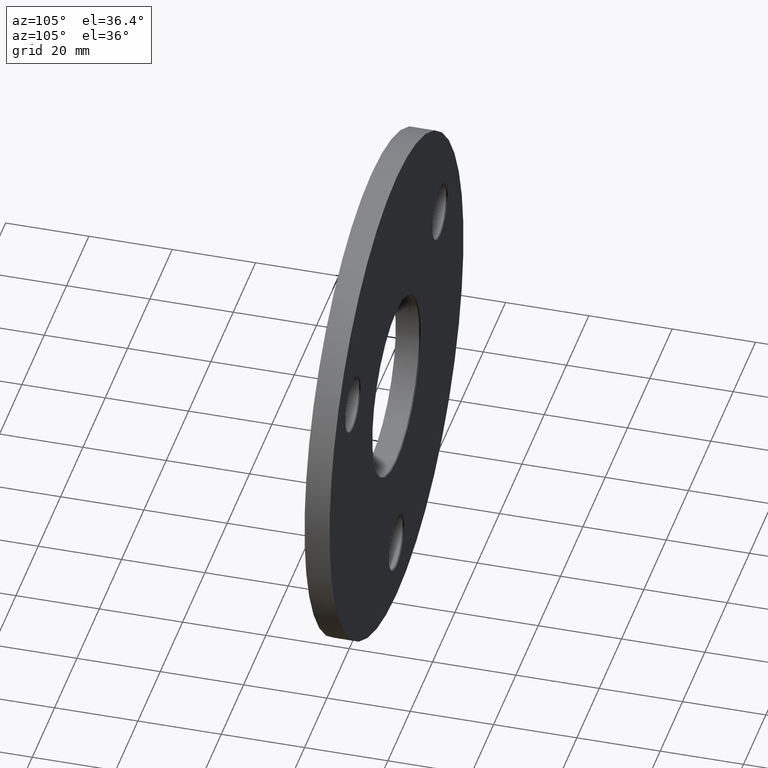
[diagram: clean part render]
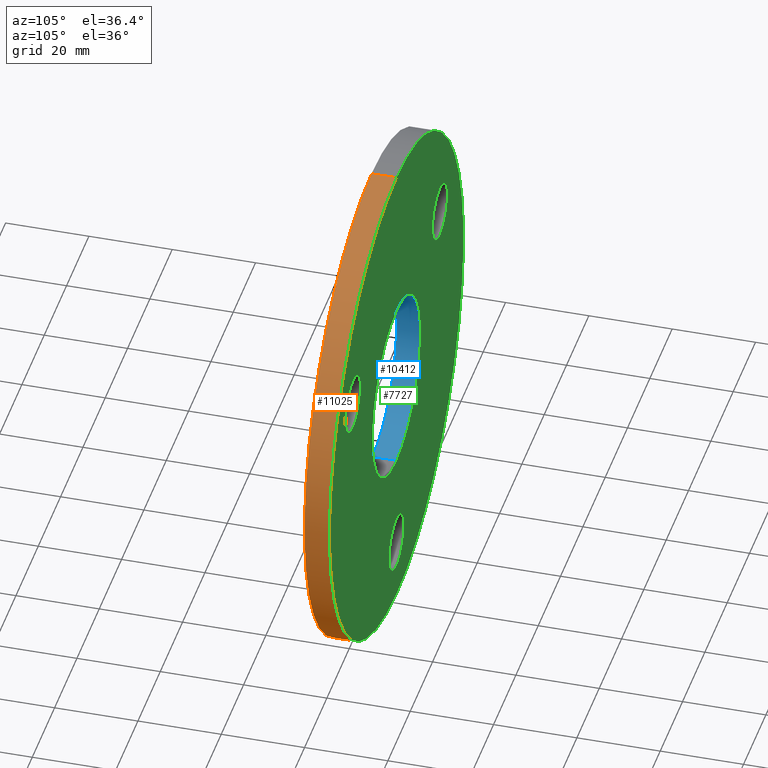
[diagram: same view with three faces highlighted in distinct colors, each labeled with its STEP entity id]
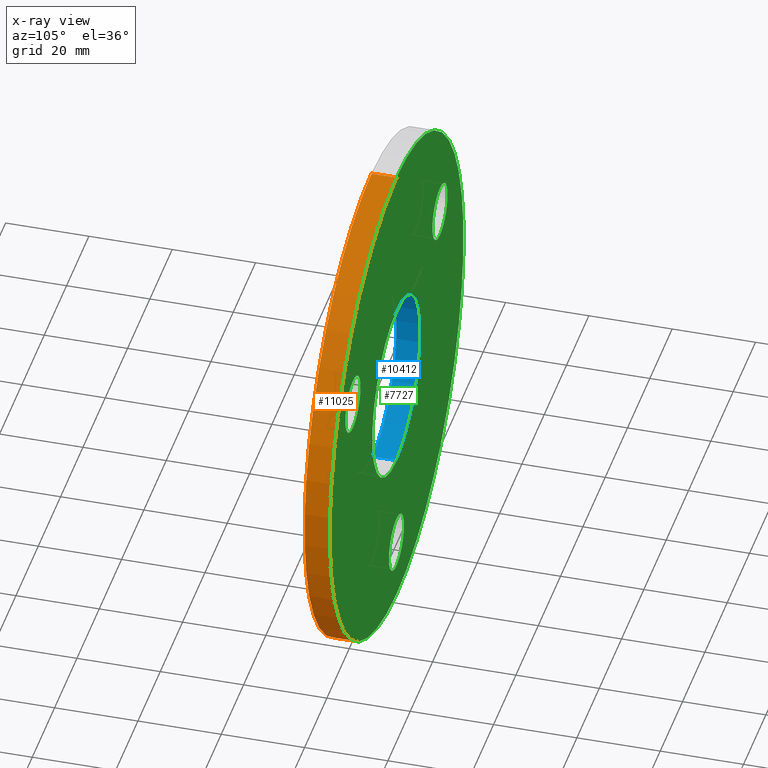
[diagram: x-ray of the same camera — body ghosted, the three highlighted faces saturated]
A machine part, auxiliary view with three faces highlighted in distinct colors.
The next image is the same camera in x-ray (body ghosted, the three faces saturated) — at least one of them is partly hidden behind the body in this view.
Their STEP definitions:

[orange] entity #11025 — the highlighted cylindrical surface (partial cylindrical patch) has radius 60 mm, axis along (-0, -1, -0).
#642 = EDGE_LOOP ( 'NONE', ( #5827, #2357, #12150, #735 ) ) ;
#735 = ORIENTED_EDGE ( 'NONE', *, *, #5566, .F. ) ;
#754 = VERTEX_POINT ( 'NONE', #4072 ) ;
#956 = DIRECTION ( 'NONE',  ( -0.000000000000000000, -1.000000000000000000, -0.000000000000000000 ) ) ;
#1080 = VECTOR ( 'NONE', #10108, 1000.000000000000000 ) ;
#2357 = ORIENTED_EDGE ( 'NONE', *, *, #11324, .T. ) ;
#2361 = LINE ( 'NONE', #12011, #1080 ) ;
#2918 = CARTESIAN_POINT ( 'NONE',  ( 7.347880794884118356E-15, 6.000000000000000000, 60.00000000000000000 ) ) ;
#2967 = EDGE_CURVE ( 'NONE', #8193, #754, #6331, .T. ) ;
#3118 = AXIS2_PLACEMENT_3D ( 'NONE', #8596, #8512, #4784 ) ;
#3627 = DIRECTION ( 'NONE',  ( 0.000000000000000000, 0.000000000000000000, 1.000000000000000000 ) ) ;
#3648 = CARTESIAN_POINT ( 'NONE',  ( 0.000000000000000000, 6.000000000000000000, -60.00000000000000000 ) ) ;
#3822 = CARTESIAN_POINT ( 'NONE',  ( 7.347880794884118356E-15, 0.000000000000000000, 60.00000000000000000 ) ) ;
#4072 = CARTESIAN_POINT ( 'NONE',  ( 0.000000000000000000, 0.000000000000000000, -60.00000000000000000 ) ) ;
#4772 = AXIS2_PLACEMENT_3D ( 'NONE', #10327, #6591, #3627 ) ;
#4784 = DIRECTION ( 'NONE',  ( 0.000000000000000000, 0.000000000000000000, 1.000000000000000000 ) ) ;
#5245 = VECTOR ( 'NONE', #12069, 1000.000000000000000 ) ;
#5322 = FACE_OUTER_BOUND ( 'NONE', #642, .T. ) ;
#5566 = EDGE_CURVE ( 'NONE', #11062, #754, #10972, .T. ) ;
#5827 = ORIENTED_EDGE ( 'NONE', *, *, #6070, .F. ) ;
#6070 = EDGE_CURVE ( 'NONE', #11412, #11062, #8465, .T. ) ;
#6331 = CIRCLE ( 'NONE', #4772, 60.00000000000000000 ) ;
#6591 = DIRECTION ( 'NONE',  ( 0.000000000000000000, 1.000000000000000000, 0.000000000000000000 ) ) ;
#6786 = CYLINDRICAL_SURFACE ( 'NONE', #10463, 60.00000000000000000 ) ;
#8193 = VERTEX_POINT ( 'NONE', #3822 ) ;
#8234 = CARTESIAN_POINT ( 'NONE',  ( 0.000000000000000000, 6.000000000000000000, -60.00000000000000000 ) ) ;
#8465 = CIRCLE ( 'NONE', #3118, 60.00000000000000000 ) ;
#8512 = DIRECTION ( 'NONE',  ( 0.000000000000000000, 1.000000000000000000, 0.000000000000000000 ) ) ;
#8596 = CARTESIAN_POINT ( 'NONE',  ( 0.000000000000000000, 6.000000000000000000, 0.000000000000000000 ) ) ;
#9245 = CARTESIAN_POINT ( 'NONE',  ( 0.000000000000000000, 6.000000000000000000, 0.000000000000000000 ) ) ;
#10108 = DIRECTION ( 'NONE',  ( -0.000000000000000000, -1.000000000000000000, -0.000000000000000000 ) ) ;
#10327 = CARTESIAN_POINT ( 'NONE',  ( 0.000000000000000000, 0.000000000000000000, 0.000000000000000000 ) ) ;
#10463 = AXIS2_PLACEMENT_3D ( 'NONE', #9245, #956, #11217 ) ;
#10972 = LINE ( 'NONE', #8234, #5245 ) ;
#11025 = ADVANCED_FACE ( 'NONE', ( #5322 ), #6786, .T. ) ;
#11062 = VERTEX_POINT ( 'NONE', #3648 ) ;
#11217 = DIRECTION ( 'NONE',  ( 0.000000000000000000, 0.000000000000000000, -1.000000000000000000 ) ) ;
#11324 = EDGE_CURVE ( 'NONE', #11412, #8193, #2361, .T. ) ;
#11412 = VERTEX_POINT ( 'NONE', #2918 ) ;
#12011 = CARTESIAN_POINT ( 'NONE',  ( 7.347880794884118356E-15, 6.000000000000000000, 60.00000000000000000 ) ) ;
#12069 = DIRECTION ( 'NONE',  ( -0.000000000000000000, -1.000000000000000000, -0.000000000000000000 ) ) ;
#12150 = ORIENTED_EDGE ( 'NONE', *, *, #2967, .T. ) ;

[blue] entity #10412 — the highlighted cylindrical surface (partial cylindrical patch) has radius 21.4 mm, axis along (-0, 1, -0).
#73 = DIRECTION ( 'NONE',  ( -0.000000000000000000, 1.000000000000000000, -0.000000000000000000 ) ) ;
#204 = CYLINDRICAL_SURFACE ( 'NONE', #5026, 21.39999999999999858 ) ;
#526 = CIRCLE ( 'NONE', #1806, 21.39999999999999858 ) ;
#779 = ORIENTED_EDGE ( 'NONE', *, *, #9033, .T. ) ;
#1806 = AXIS2_PLACEMENT_3D ( 'NONE', #10200, #5518, #8274 ) ;
#2708 = EDGE_CURVE ( 'NONE', #2955, #10328, #6779, .T. ) ;
#2949 = VERTEX_POINT ( 'NONE', #7550 ) ;
#2955 = VERTEX_POINT ( 'NONE', #4664 ) ;
#2959 = CARTESIAN_POINT ( 'NONE',  ( 0.000000000000000000, 0.000000000000000000, 0.000000000000000000 ) ) ;
#3197 = CARTESIAN_POINT ( 'NONE',  ( 2.620744150175335878E-15, 5.750000000000007105, -21.39999999999999858 ) ) ;
#4125 = FACE_OUTER_BOUND ( 'NONE', #10057, .T. ) ;
#4290 = CIRCLE ( 'NONE', #9906, 21.39999999999999858 ) ;
#4664 = CARTESIAN_POINT ( 'NONE',  ( 0.000000000000000000, 0.2499999999999932832, 21.39999999999999858 ) ) ;
#4692 = DIRECTION ( 'NONE',  ( -0.000000000000000000, 1.000000000000000000, -0.000000000000000000 ) ) ;
#5026 = AXIS2_PLACEMENT_3D ( 'NONE', #2959, #4692, #10473 ) ;
#5189 = DIRECTION ( 'NONE',  ( -0.000000000000000000, -1.000000000000000000, -0.000000000000000000 ) ) ;
#5518 = DIRECTION ( 'NONE',  ( 0.000000000000000000, 1.000000000000000000, 0.000000000000000000 ) ) ;
#5747 = ORIENTED_EDGE ( 'NONE', *, *, #9482, .T. ) ;
#6779 = LINE ( 'NONE', #8551, #8391 ) ;
#7469 = ORIENTED_EDGE ( 'NONE', *, *, #8127, .T. ) ;
#7550 = CARTESIAN_POINT ( 'NONE',  ( 2.620744150175335878E-15, 0.2499999999999932832, -21.39999999999999858 ) ) ;
#8127 = EDGE_CURVE ( 'NONE', #8341, #10328, #526, .T. ) ;
#8274 = DIRECTION ( 'NONE',  ( 0.000000000000000000, 0.000000000000000000, 1.000000000000000000 ) ) ;
#8341 = VERTEX_POINT ( 'NONE', #3197 ) ;
#8391 = VECTOR ( 'NONE', #73, 1000.000000000000000 ) ;
#8551 = CARTESIAN_POINT ( 'NONE',  ( 0.000000000000000000, 0.000000000000000000, 21.39999999999999858 ) ) ;
#8811 = CARTESIAN_POINT ( 'NONE',  ( 2.620744150175335878E-15, 0.000000000000000000, -21.39999999999999858 ) ) ;
#9033 = EDGE_CURVE ( 'NONE', #2949, #8341, #11526, .T. ) ;
#9370 = CARTESIAN_POINT ( 'NONE',  ( 0.000000000000000000, 5.750000000000007105, 21.39999999999999858 ) ) ;
#9482 = EDGE_CURVE ( 'NONE', #2955, #2949, #4290, .T. ) ;
#9603 = ORIENTED_EDGE ( 'NONE', *, *, #2708, .F. ) ;
#9748 = DIRECTION ( 'NONE',  ( 0.000000000000000000, 0.000000000000000000, 1.000000000000000000 ) ) ;
#9761 = DIRECTION ( 'NONE',  ( -0.000000000000000000, 1.000000000000000000, -0.000000000000000000 ) ) ;
#9906 = AXIS2_PLACEMENT_3D ( 'NONE', #11691, #5189, #9748 ) ;
#10057 = EDGE_LOOP ( 'NONE', ( #5747, #779, #7469, #9603 ) ) ;
#10200 = CARTESIAN_POINT ( 'NONE',  ( 0.000000000000000000, 5.750000000000007105, 0.000000000000000000 ) ) ;
#10328 = VERTEX_POINT ( 'NONE', #9370 ) ;
#10412 = ADVANCED_FACE ( 'NONE', ( #4125 ), #204, .F. ) ;
#10473 = DIRECTION ( 'NONE',  ( 0.000000000000000000, 0.000000000000000000, 1.000000000000000000 ) ) ;
#10619 = VECTOR ( 'NONE', #9761, 1000.000000000000000 ) ;
#11526 = LINE ( 'NONE', #8811, #10619 ) ;
#11691 = CARTESIAN_POINT ( 'NONE',  ( 0.000000000000000000, 0.2499999999999932832, 0.000000000000000000 ) ) ;

[green] entity #7727 — the highlighted planar face has unit normal (0, 1, 0).
#193 = CARTESIAN_POINT ( 'NONE',  ( 0.000000000000000000, 6.000000000000000000, -38.25000000000000711 ) ) ;
#281 = VERTEX_POINT ( 'NONE', #9692 ) ;
#529 = AXIS2_PLACEMENT_3D ( 'NONE', #6562, #4804, #11378 ) ;
#603 = DIRECTION ( 'NONE',  ( -0.000000000000000000, -1.000000000000000000, -0.000000000000000000 ) ) ;
#607 = AXIS2_PLACEMENT_3D ( 'NONE', #1891, #2734, #6606 ) ;
#703 = EDGE_LOOP ( 'NONE', ( #3218, #1149 ) ) ;
#915 = ORIENTED_EDGE ( 'NONE', *, *, #5829, .T. ) ;
#982 = VERTEX_POINT ( 'NONE', #5848 ) ;
#1019 = CARTESIAN_POINT ( 'NONE',  ( 0.000000000000000000, 6.000000000000000000, 0.000000000000000000 ) ) ;
#1034 = EDGE_CURVE ( 'NONE', #11414, #10438, #11286, .T. ) ;
#1141 = DIRECTION ( 'NONE',  ( 0.000000000000000000, 0.000000000000000000, 1.000000000000000000 ) ) ;
#1149 = ORIENTED_EDGE ( 'NONE', *, *, #11958, .T. ) ;
#1205 = CIRCLE ( 'NONE', #5191, 6.750000000000033751 ) ;
#1362 = EDGE_CURVE ( 'NONE', #3867, #281, #2302, .T. ) ;
#1622 = AXIS2_PLACEMENT_3D ( 'NONE', #9383, #12070, #8434 ) ;
#1776 = EDGE_LOOP ( 'NONE', ( #6773, #915 ) ) ;
#1879 = EDGE_CURVE ( 'NONE', #982, #6471, #11271, .T. ) ;
#1891 = CARTESIAN_POINT ( 'NONE',  ( 0.000000000000000000, 6.000000000000000000, 0.000000000000000000 ) ) ;
#1976 = VERTEX_POINT ( 'NONE', #7953 ) ;
#2119 = EDGE_CURVE ( 'NONE', #2483, #1976, #10969, .T. ) ;
#2235 = ORIENTED_EDGE ( 'NONE', *, *, #1034, .T. ) ;
#2302 = CIRCLE ( 'NONE', #607, 21.64999999999997371 ) ;
#2440 = EDGE_CURVE ( 'NONE', #6471, #982, #7389, .T. ) ;
#2483 = VERTEX_POINT ( 'NONE', #11052 ) ;
#2734 = DIRECTION ( 'NONE',  ( -0.000000000000000000, -1.000000000000000000, -0.000000000000000000 ) ) ;
#2917 = EDGE_LOOP ( 'NONE', ( #3579, #5925 ) ) ;
#2918 = CARTESIAN_POINT ( 'NONE',  ( 7.347880794884118356E-15, 6.000000000000000000, 60.00000000000000000 ) ) ;
#2939 = DIRECTION ( 'NONE',  ( 0.000000000000000000, -0.000000000000000000, 1.000000000000000000 ) ) ;
#2944 = EDGE_CURVE ( 'NONE', #10438, #11414, #8819, .T. ) ;
#2988 = EDGE_LOOP ( 'NONE', ( #10277, #2235 ) ) ;
#3118 = AXIS2_PLACEMENT_3D ( 'NONE', #8596, #8512, #4784 ) ;
#3141 = FACE_BOUND ( 'NONE', #703, .T. ) ;
#3218 = ORIENTED_EDGE ( 'NONE', *, *, #2119, .T. ) ;
#3464 = CARTESIAN_POINT ( 'NONE',  ( 38.97114317029974728, 6.000000000000000000, 22.49999999999999645 ) ) ;
#3579 = ORIENTED_EDGE ( 'NONE', *, *, #7631, .T. ) ;
#3648 = CARTESIAN_POINT ( 'NONE',  ( 0.000000000000000000, 6.000000000000000000, -60.00000000000000000 ) ) ;
#3867 = VERTEX_POINT ( 'NONE', #11043 ) ;
#3873 = DIRECTION ( 'NONE',  ( -0.000000000000000000, -1.000000000000000000, -0.000000000000000000 ) ) ;
#4055 = AXIS2_PLACEMENT_3D ( 'NONE', #10173, #10128, #7397 ) ;
#4283 = AXIS2_PLACEMENT_3D ( 'NONE', #3464, #603, #9161 ) ;
#4375 = AXIS2_PLACEMENT_3D ( 'NONE', #11404, #8786, #4645 ) ;
#4435 = AXIS2_PLACEMENT_3D ( 'NONE', #9517, #3873, #5778 ) ;
#4588 = CARTESIAN_POINT ( 'NONE',  ( -38.97114317029973307, 6.000000000000000000, 22.50000000000002132 ) ) ;
#4645 = DIRECTION ( 'NONE',  ( 0.000000000000000000, 0.000000000000000000, 1.000000000000000000 ) ) ;
#4784 = DIRECTION ( 'NONE',  ( 0.000000000000000000, 0.000000000000000000, 1.000000000000000000 ) ) ;
#4804 = DIRECTION ( 'NONE',  ( -0.000000000000000000, -1.000000000000000000, -0.000000000000000000 ) ) ;
#5191 = AXIS2_PLACEMENT_3D ( 'NONE', #5784, #10497, #1141 ) ;
#5778 = DIRECTION ( 'NONE',  ( 0.000000000000000000, 0.000000000000000000, 1.000000000000000000 ) ) ;
#5784 = CARTESIAN_POINT ( 'NONE',  ( -38.97114317029973307, 6.000000000000000000, 22.50000000000002132 ) ) ;
#5794 = CARTESIAN_POINT ( 'NONE',  ( 8.266365894244624473E-16, 6.000000000000000000, -51.74999999999999289 ) ) ;
#5829 = EDGE_CURVE ( 'NONE', #281, #3867, #11429, .T. ) ;
#5848 = CARTESIAN_POINT ( 'NONE',  ( 38.97114317029974728, 6.000000000000000000, 29.25000000000003197 ) ) ;
#5925 = ORIENTED_EDGE ( 'NONE', *, *, #6070, .T. ) ;
#5947 = FACE_BOUND ( 'NONE', #6991, .T. ) ;
#6070 = EDGE_CURVE ( 'NONE', #11412, #11062, #8465, .T. ) ;
#6471 = VERTEX_POINT ( 'NONE', #11800 ) ;
#6539 = FACE_OUTER_BOUND ( 'NONE', #2917, .T. ) ;
#6562 = CARTESIAN_POINT ( 'NONE',  ( 38.97114317029974728, 6.000000000000000000, 22.49999999999999645 ) ) ;
#6606 = DIRECTION ( 'NONE',  ( 0.000000000000000000, 0.000000000000000000, 1.000000000000000000 ) ) ;
#6773 = ORIENTED_EDGE ( 'NONE', *, *, #1362, .T. ) ;
#6991 = EDGE_LOOP ( 'NONE', ( #10428, #8166 ) ) ;
#7038 = AXIS2_PLACEMENT_3D ( 'NONE', #4588, #11106, #11022 ) ;
#7389 = CIRCLE ( 'NONE', #4283, 6.750000000000037303 ) ;
#7397 = DIRECTION ( 'NONE',  ( 0.000000000000000000, 0.000000000000000000, 1.000000000000000000 ) ) ;
#7631 = EDGE_CURVE ( 'NONE', #11062, #11412, #10641, .T. ) ;
#7727 = ADVANCED_FACE ( 'NONE', ( #10631, #5947, #3141, #9918, #6539 ), #9519, .T. ) ;
#7953 = CARTESIAN_POINT ( 'NONE',  ( -38.97114317029973307, 6.000000000000000000, 15.74999999999998579 ) ) ;
#8166 = ORIENTED_EDGE ( 'NONE', *, *, #2440, .T. ) ;
#8434 = DIRECTION ( 'NONE',  ( 0.000000000000000000, 0.000000000000000000, 1.000000000000000000 ) ) ;
#8465 = CIRCLE ( 'NONE', #3118, 60.00000000000000000 ) ;
#8512 = DIRECTION ( 'NONE',  ( 0.000000000000000000, 1.000000000000000000, 0.000000000000000000 ) ) ;
#8596 = CARTESIAN_POINT ( 'NONE',  ( 0.000000000000000000, 6.000000000000000000, 0.000000000000000000 ) ) ;
#8786 = DIRECTION ( 'NONE',  ( -0.000000000000000000, -1.000000000000000000, -0.000000000000000000 ) ) ;
#8819 = CIRCLE ( 'NONE', #1622, 6.749999999999992006 ) ;
#9161 = DIRECTION ( 'NONE',  ( 0.000000000000000000, 0.000000000000000000, 1.000000000000000000 ) ) ;
#9383 = CARTESIAN_POINT ( 'NONE',  ( 0.000000000000000000, 6.000000000000000000, -45.00000000000000000 ) ) ;
#9391 = DIRECTION ( 'NONE',  ( 0.000000000000000000, 1.000000000000000000, 0.000000000000000000 ) ) ;
#9517 = CARTESIAN_POINT ( 'NONE',  ( 0.000000000000000000, 6.000000000000000000, -45.00000000000000000 ) ) ;
#9519 = PLANE ( 'NONE',  #10371 ) ;
#9692 = CARTESIAN_POINT ( 'NONE',  ( 2.651360320154016904E-15, 6.000000000000000000, -21.64999999999997371 ) ) ;
#9918 = FACE_BOUND ( 'NONE', #2988, .T. ) ;
#10128 = DIRECTION ( 'NONE',  ( 0.000000000000000000, 1.000000000000000000, 0.000000000000000000 ) ) ;
#10173 = CARTESIAN_POINT ( 'NONE',  ( 0.000000000000000000, 6.000000000000000000, 0.000000000000000000 ) ) ;
#10277 = ORIENTED_EDGE ( 'NONE', *, *, #2944, .T. ) ;
#10371 = AXIS2_PLACEMENT_3D ( 'NONE', #1019, #9391, #2939 ) ;
#10428 = ORIENTED_EDGE ( 'NONE', *, *, #1879, .T. ) ;
#10438 = VERTEX_POINT ( 'NONE', #193 ) ;
#10497 = DIRECTION ( 'NONE',  ( -0.000000000000000000, -1.000000000000000000, -0.000000000000000000 ) ) ;
#10631 = FACE_BOUND ( 'NONE', #1776, .T. ) ;
#10641 = CIRCLE ( 'NONE', #4055, 60.00000000000000000 ) ;
#10969 = CIRCLE ( 'NONE', #7038, 6.750000000000033751 ) ;
#11022 = DIRECTION ( 'NONE',  ( 0.000000000000000000, 0.000000000000000000, 1.000000000000000000 ) ) ;
#11043 = CARTESIAN_POINT ( 'NONE',  ( 0.000000000000000000, 6.000000000000000000, 21.64999999999997371 ) ) ;
#11052 = CARTESIAN_POINT ( 'NONE',  ( -38.97114317029973307, 6.000000000000000000, 29.25000000000005329 ) ) ;
#11062 = VERTEX_POINT ( 'NONE', #3648 ) ;
#11106 = DIRECTION ( 'NONE',  ( -0.000000000000000000, -1.000000000000000000, -0.000000000000000000 ) ) ;
#11271 = CIRCLE ( 'NONE', #529, 6.750000000000037303 ) ;
#11286 = CIRCLE ( 'NONE', #4435, 6.749999999999992006 ) ;
#11378 = DIRECTION ( 'NONE',  ( 0.000000000000000000, 0.000000000000000000, 1.000000000000000000 ) ) ;
#11404 = CARTESIAN_POINT ( 'NONE',  ( 0.000000000000000000, 6.000000000000000000, 0.000000000000000000 ) ) ;
#11412 = VERTEX_POINT ( 'NONE', #2918 ) ;
#11414 = VERTEX_POINT ( 'NONE', #5794 ) ;
#11429 = CIRCLE ( 'NONE', #4375, 21.64999999999997371 ) ;
#11800 = CARTESIAN_POINT ( 'NONE',  ( 38.97114317029974728, 6.000000000000000000, 15.74999999999995914 ) ) ;
#11958 = EDGE_CURVE ( 'NONE', #1976, #2483, #1205, .T. ) ;
#12070 = DIRECTION ( 'NONE',  ( -0.000000000000000000, -1.000000000000000000, -0.000000000000000000 ) ) ;